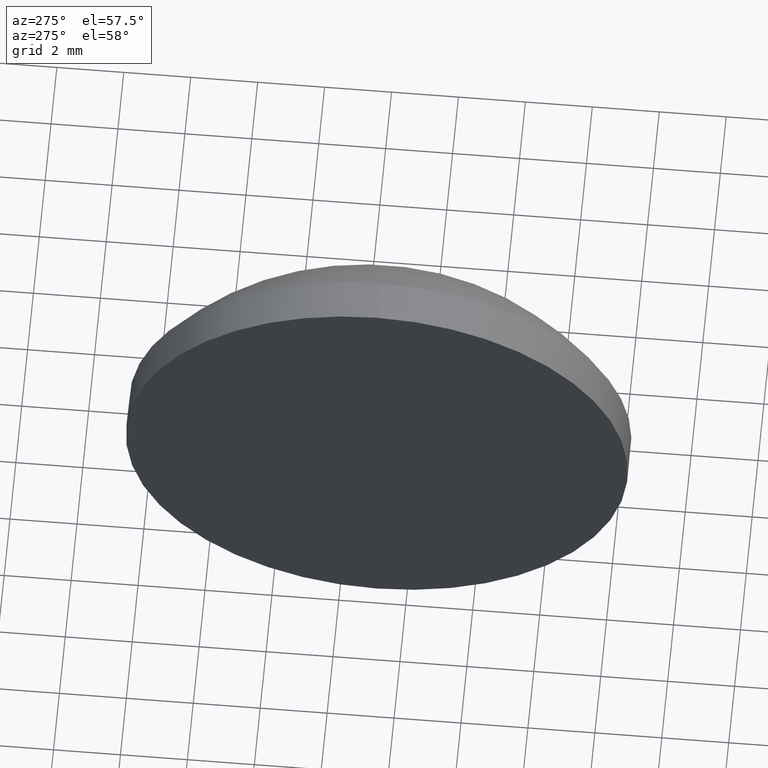
[diagram: clean part render]
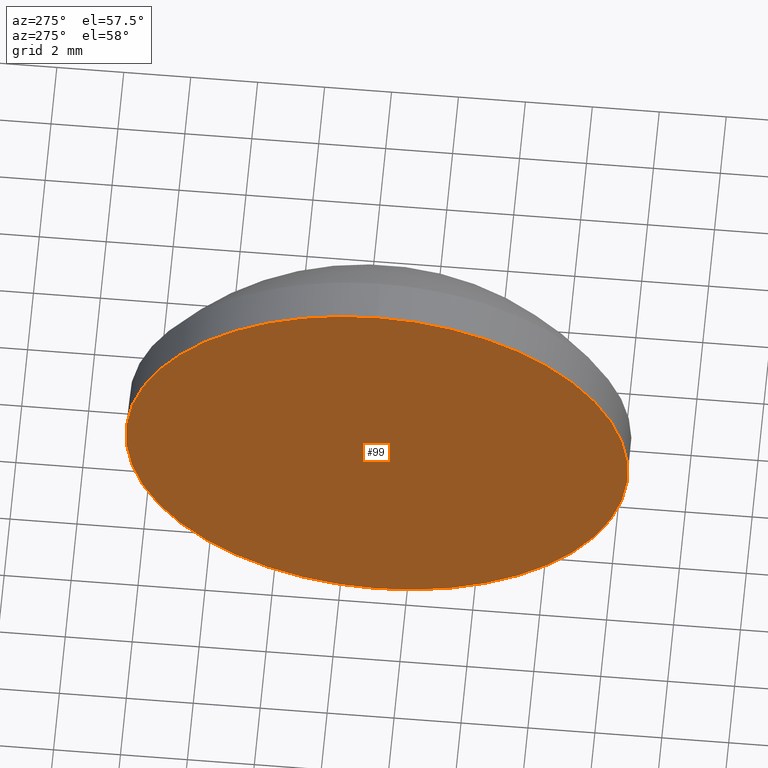
[diagram: same view with one face highlighted and labeled with its STEP entity id]
A machine part, auxiliary view. The second image highlights one B-rep face of the part: STEP entity #99.
In plain terms, the highlighted planar face has unit normal (1, 0, 0).
Its self-contained STEP definition (entity closure, byte-faithful):
#16 = EDGE_LOOP ( 'NONE', ( #184, #43 ) ) ;
#37 = CARTESIAN_POINT ( 'NONE',  ( 376.3009013255557400, 56.89119272010739800, 0.0000000000000000000 ) ) ;
#43 = ORIENTED_EDGE ( 'NONE', *, *, #46, .T. ) ;
#46 = EDGE_CURVE ( 'NONE', #100, #92, #142, .T. ) ;
#52 = DIRECTION ( 'NONE',  ( 1.000000000000000000, 0.0000000000000000000, 0.0000000000000000000 ) ) ;
#59 = AXIS2_PLACEMENT_3D ( 'NONE', #79, #129, #93 ) ;
#66 = CARTESIAN_POINT ( 'NONE',  ( 376.3009013255557400, 56.89119272010739800, 0.0000000000000000000 ) ) ;
#76 = PLANE ( 'NONE',  #167 ) ;
#79 = CARTESIAN_POINT ( 'NONE',  ( 376.3009013255557400, 56.89119272010739800, 0.0000000000000000000 ) ) ;
#80 = DIRECTION ( 'NONE',  ( -1.000000000000000000, -0.0000000000000000000, -0.0000000000000000000 ) ) ;
#92 = VERTEX_POINT ( 'NONE', #119 ) ;
#93 = DIRECTION ( 'NONE',  ( 0.0000000000000000000, 0.0000000000000000000, 1.000000000000000000 ) ) ;
#99 = ADVANCED_FACE ( 'NONE', ( #162 ), #76, .F. ) ;
#100 = VERTEX_POINT ( 'NONE', #182 ) ;
#119 = CARTESIAN_POINT ( 'NONE',  ( 376.3009013255557400, 56.89119272010739800, 7.500000000000007100 ) ) ;
#129 = DIRECTION ( 'NONE',  ( -1.000000000000000000, -0.0000000000000000000, -0.0000000000000000000 ) ) ;
#142 = CIRCLE ( 'NONE', #59, 7.500000000000007100 ) ;
#150 = DIRECTION ( 'NONE',  ( 0.0000000000000000000, 0.0000000000000000000, -1.000000000000000000 ) ) ;
#155 = CIRCLE ( 'NONE', #169, 7.500000000000007100 ) ;
#162 = FACE_OUTER_BOUND ( 'NONE', #16, .T. ) ;
#167 = AXIS2_PLACEMENT_3D ( 'NONE', #37, #52, #150 ) ;
#169 = AXIS2_PLACEMENT_3D ( 'NONE', #66, #80, #178 ) ;
#178 = DIRECTION ( 'NONE',  ( 0.0000000000000000000, 0.0000000000000000000, 1.000000000000000000 ) ) ;
#182 = CARTESIAN_POINT ( 'NONE',  ( 376.3009013255557400, 56.89119272010739800, -7.500000000000007100 ) ) ;
#184 = ORIENTED_EDGE ( 'NONE', *, *, #185, .T. ) ;
#185 = EDGE_CURVE ( 'NONE', #92, #100, #155, .T. ) ;